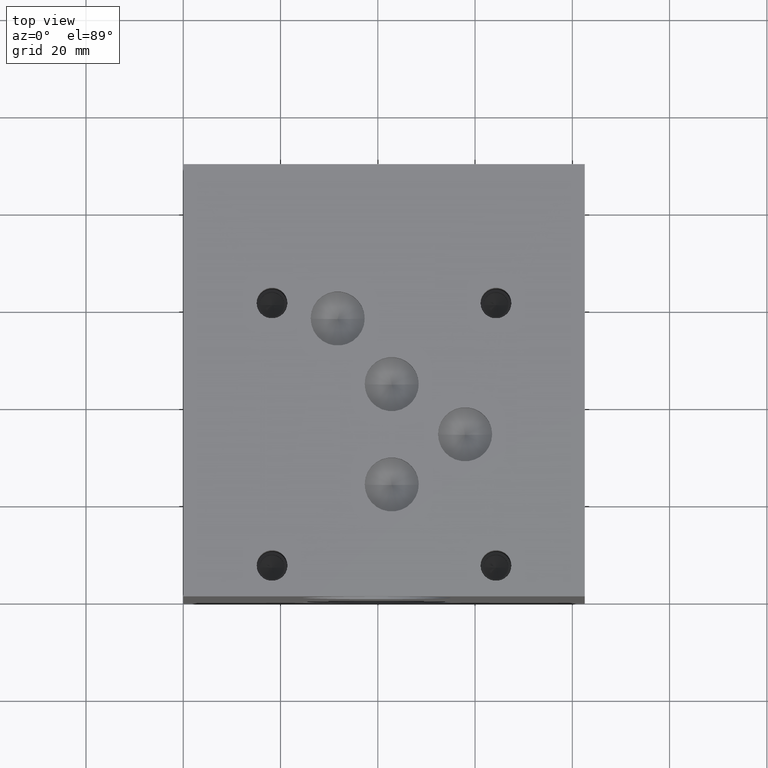
[diagram: clean part render]
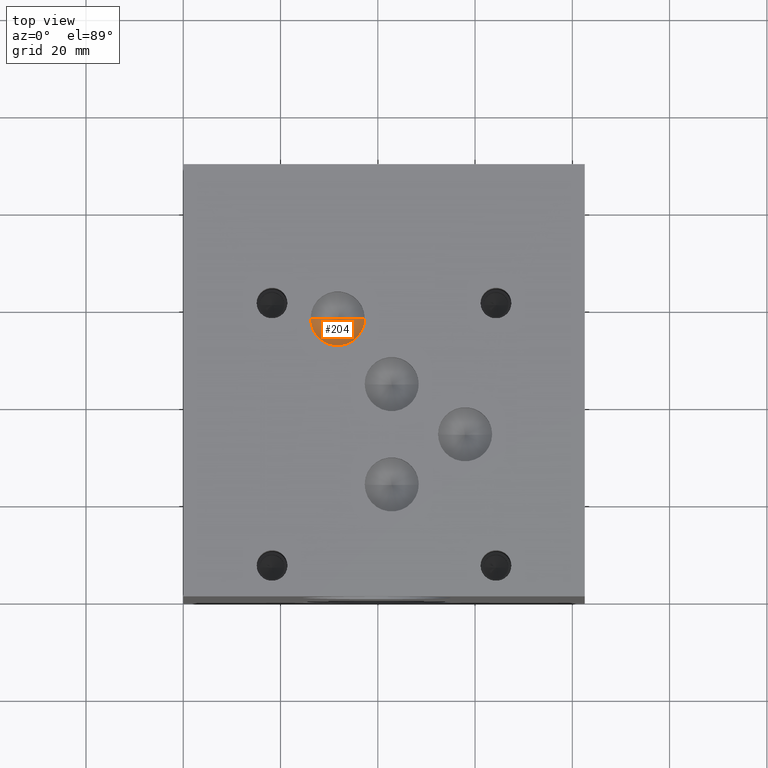
[diagram: same view with one face highlighted and labeled with its STEP entity id]
A machine part, top view. The second image highlights one B-rep face of the part: STEP entity #204.
In plain terms, the highlighted conical surface has half-angle 60 deg.
Its self-contained STEP definition (entity closure, byte-faithful):
#161=CARTESIAN_POINT('',(1.468800000000000,2.249499999999999,3.373560291047470));
#162=VERTEX_POINT('',#161);
#163=CARTESIAN_POINT('',(1.030800000000000,2.249499999999999,3.373560291047470));
#164=VERTEX_POINT('',#163);
#165=CARTESIAN_POINT('',(1.249800000000000,2.249499999999999,3.373560291047470));
#166=DIRECTION('',(0.0,0.0,-1.0));
#167=DIRECTION('',(1.0,0.0,0.0));
#168=AXIS2_PLACEMENT_3D('',#165,#166,#167);
#169=CIRCLE('',#168,0.219000000000000);
#170=EDGE_CURVE('',#162,#164,#169,.T.);
#182=CARTESIAN_POINT('',(1.249800000000000,2.249499999999999,3.824470851284567));
#183=DIRECTION('',(0.0,0.0,1.0));
#184=DIRECTION('',(1.0,0.0,0.0));
#185=AXIS2_PLACEMENT_3D('',#182,#183,#184);
#186=CONICAL_SURFACE('',#185,1.000000000000000,59.999999999999993);
#187=CARTESIAN_POINT('',(1.249800000000000,2.249499999999999,3.247120582094940));
#188=VERTEX_POINT('',#187);
#189=CARTESIAN_POINT('',(1.030800000000000,2.249499999999999,3.373560291047470));
#190=DIRECTION('',(0.866025403784435,0.0,-0.500000000000006));
#191=VECTOR('',#190,0.252879417905057);
#192=LINE('',#189,#191);
#193=EDGE_CURVE('',#164,#188,#192,.T.);
#194=ORIENTED_EDGE('',*,*,#193,.F.);
#195=ORIENTED_EDGE('',*,*,#170,.F.);
#196=CARTESIAN_POINT('',(1.249800000000000,2.249499999999999,3.247120582094940));
#197=DIRECTION('',(0.866025403784434,0.0,0.500000000000007));
#198=VECTOR('',#197,0.252879417905057);
#199=LINE('',#196,#198);
#200=EDGE_CURVE('',#188,#162,#199,.T.);
#201=ORIENTED_EDGE('',*,*,#200,.F.);
#202=EDGE_LOOP('',(#194,#195,#201));
#203=FACE_OUTER_BOUND('',#202,.T.);
#204=ADVANCED_FACE('',(#203),#186,.T.);